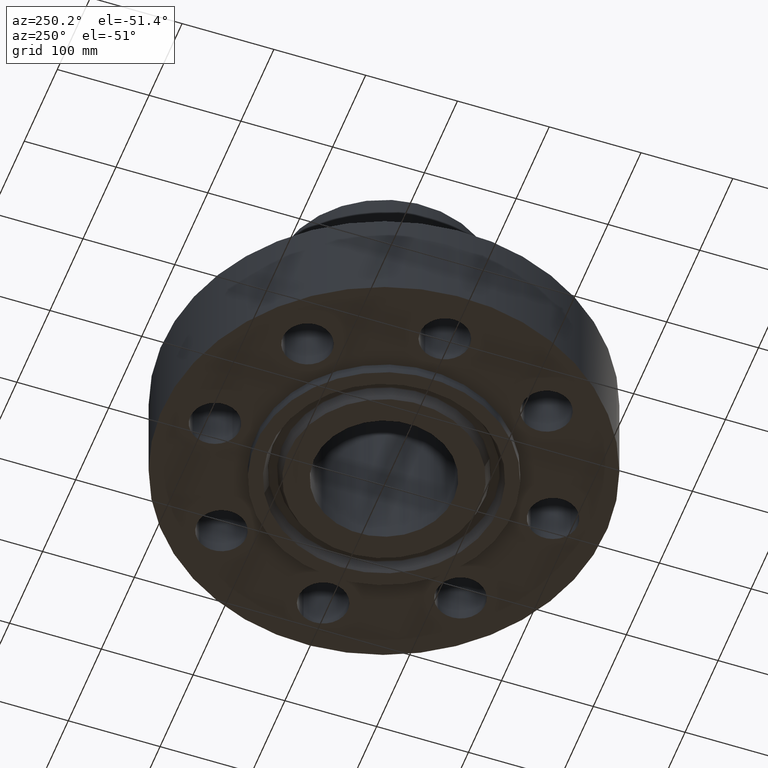
[diagram: clean part render]
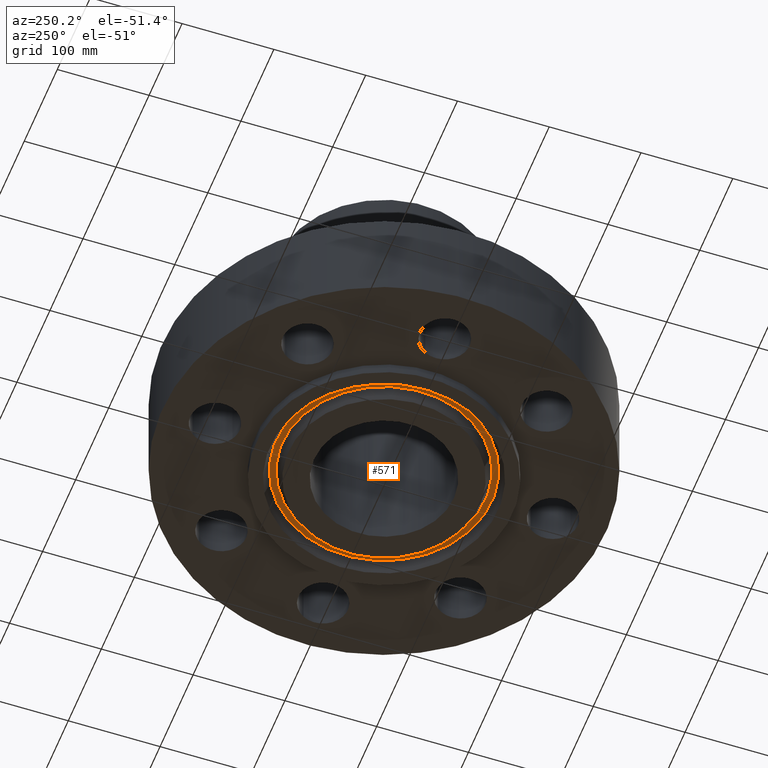
[diagram: same view with one face highlighted and labeled with its STEP entity id]
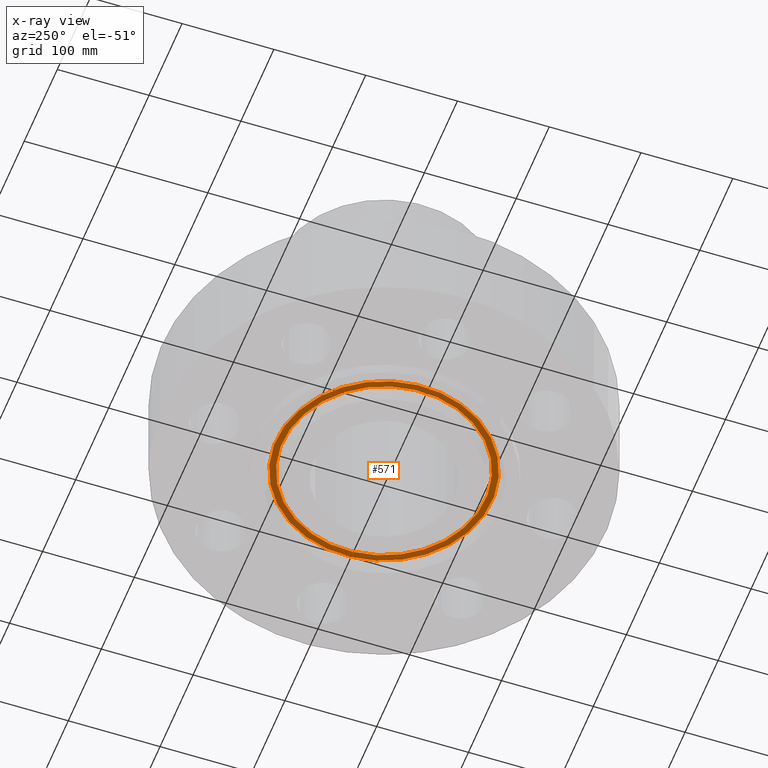
[diagram: x-ray of the same camera — body ghosted, the highlighted face saturated]
A machine part, auxiliary view. The second image highlights one B-rep face of the part: STEP entity #571.
The next image is the same camera in x-ray: the body ghosted, the highlighted face saturated — about 0% of this face is hidden behind the body in this view.
In plain terms, the highlighted planar face has unit normal (0, 0, -1).
Its self-contained STEP definition (entity closure, byte-faithful):
#78=AXIS2_PLACEMENT_3D('Plane Axis2P3D',#75,#76,#77) ;
#520=AXIS2_PLACEMENT_3D('Circle Axis2P3D',#518,#519,$) ;
#539=AXIS2_PLACEMENT_3D('Circle Axis2P3D',#537,#538,$) ;
#551=AXIS2_PLACEMENT_3D('Circle Axis2P3D',#549,#550,$) ;
#560=AXIS2_PLACEMENT_3D('Circle Axis2P3D',#558,#559,$) ;
#75=CARTESIAN_POINT('Axis2P3D Location',(0.,4.36343619848,0.)) ;
#515=CARTESIAN_POINT('Vertex',(-2.09194274962,-3.82927551771,2.01064012334E-016)) ;
#518=CARTESIAN_POINT('Axis2P3D Location',(0.,0.,2.01064012334E-016)) ;
#522=CARTESIAN_POINT('Vertex',(2.09194274962,3.82927551771,2.01064012334E-016)) ;
#537=CARTESIAN_POINT('Axis2P3D Location',(0.,0.,2.01064012334E-016)) ;
#549=CARTESIAN_POINT('Axis2P3D Location',(0.,0.,0.)) ;
#553=CARTESIAN_POINT('Vertex',(-2.22288709783,-4.06896753934,-7.86772222175E-017)) ;
#555=CARTESIAN_POINT('Vertex',(2.22288709783,4.06896753934,-7.86772222175E-017)) ;
#558=CARTESIAN_POINT('Axis2P3D Location',(0.,0.,0.)) ;
#76=DIRECTION('Axis2P3D Direction',(0.,0.,-0.0393700787402)) ;
#77=DIRECTION('Axis2P3D XDirection',(0.0393700787402,0.,0.)) ;
#519=DIRECTION('Axis2P3D Direction',(0.,0.,-0.0393700787402)) ;
#538=DIRECTION('Axis2P3D Direction',(0.,0.,-0.0393700787402)) ;
#550=DIRECTION('Axis2P3D Direction',(0.,0.,-0.0393700787402)) ;
#559=DIRECTION('Axis2P3D Direction',(0.,0.,-0.0393700787402)) ;
#564=ORIENTED_EDGE('',*,*,#557,.T.) ;
#565=ORIENTED_EDGE('',*,*,#562,.T.) ;
#568=ORIENTED_EDGE('',*,*,#541,.F.) ;
#569=ORIENTED_EDGE('',*,*,#524,.F.) ;
#570=FACE_BOUND('',#567,.T.) ;
#571=ADVANCED_FACE('PartBody',(#566,#570),#79,.T.) ;
#521=CIRCLE('generated circle',#520,4.36343619848) ;
#540=CIRCLE('generated circle',#539,4.36343619848) ;
#552=CIRCLE('generated circle',#551,4.63656380156) ;
#561=CIRCLE('generated circle',#560,4.63656380156) ;
#524=EDGE_CURVE('',#516,#523,#521,.T.) ;
#541=EDGE_CURVE('',#523,#516,#540,.T.) ;
#557=EDGE_CURVE('',#554,#556,#552,.T.) ;
#562=EDGE_CURVE('',#556,#554,#561,.T.) ;
#563=EDGE_LOOP('',(#564,#565)) ;
#567=EDGE_LOOP('',(#568,#569)) ;
#566=FACE_OUTER_BOUND('',#563,.T.) ;
#79=PLANE('',#78) ;
#516=VERTEX_POINT('',#515) ;
#523=VERTEX_POINT('',#522) ;
#554=VERTEX_POINT('',#553) ;
#556=VERTEX_POINT('',#555) ;